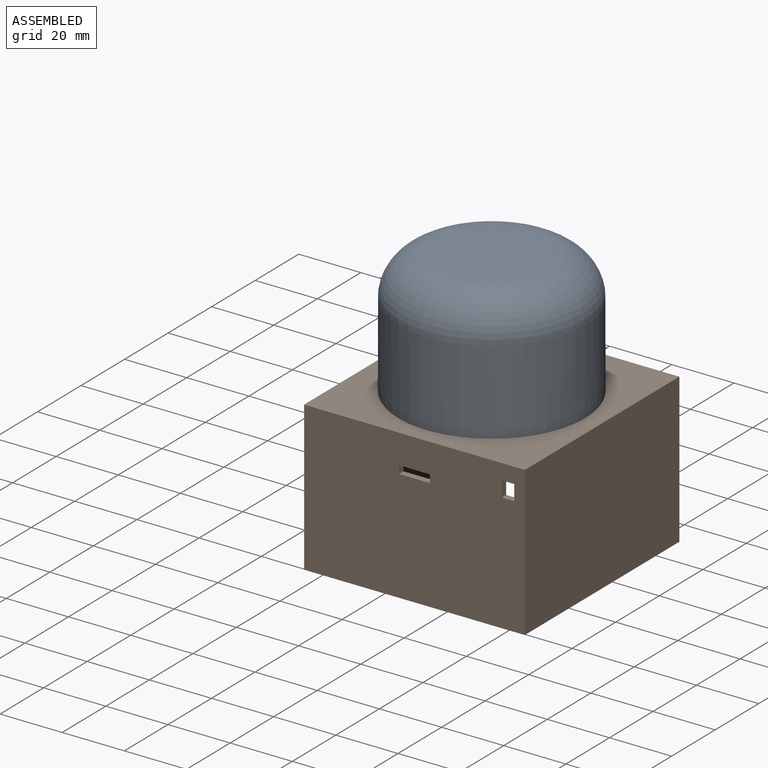
[diagram: assembled view]
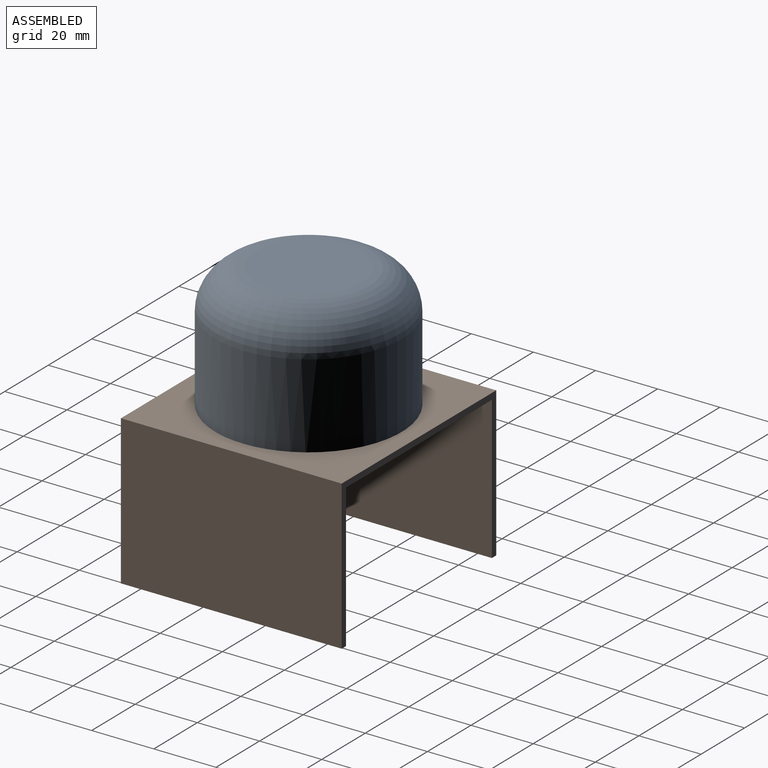
[diagram: assembled view, second angle]
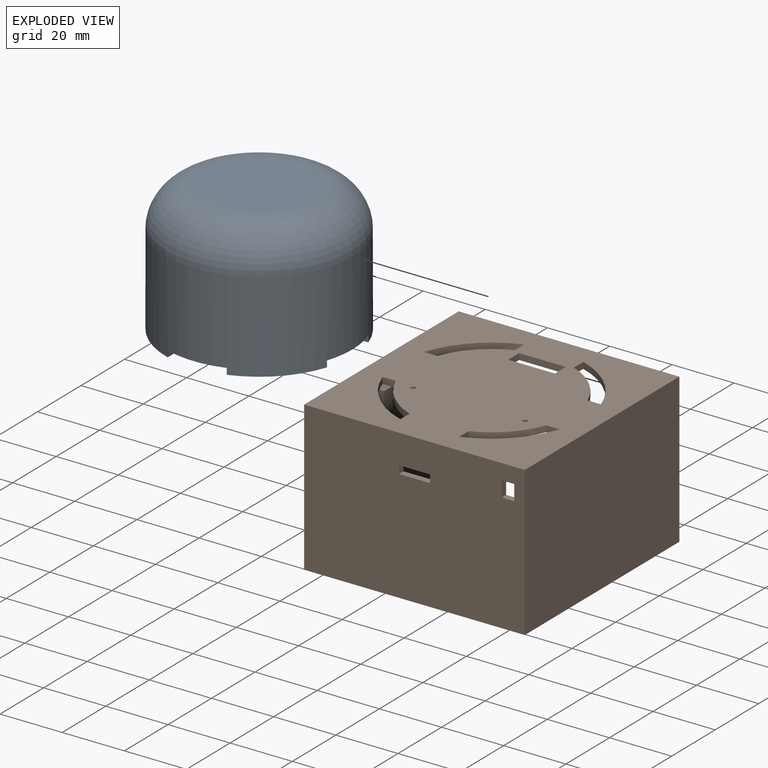
[diagram: exploded view]
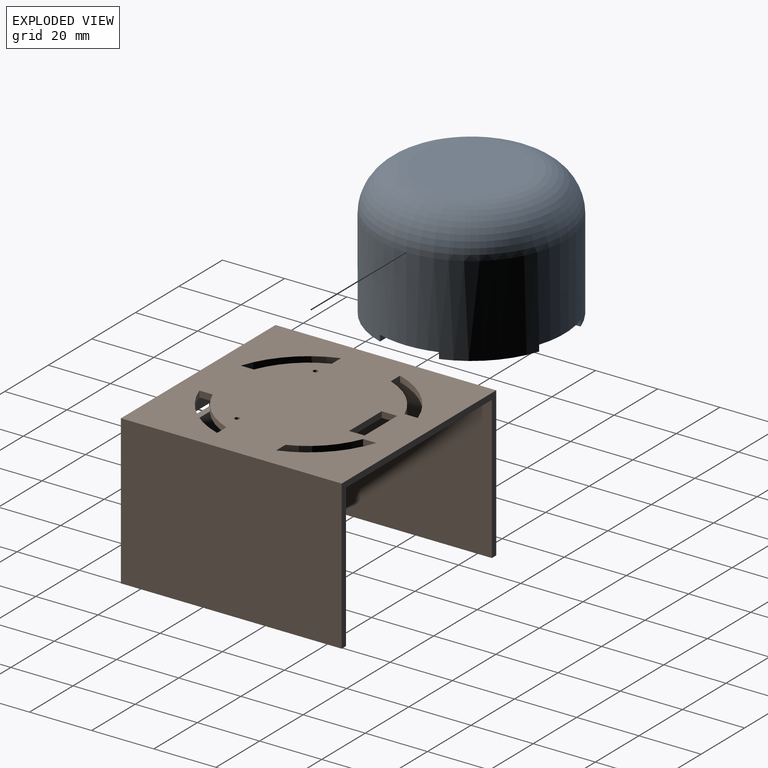
[diagram: exploded view, second angle]
ASSEMBLY  parts=2 mates=2
PART A: 24 faces, bbox 64.9x64.9x42 mm
  f0: plane 19x4.73mm, normal (0,0,-1), area 58.1mm2, adj f4,f11,f13,f21
  f1: plane 19x4.73mm, normal (0,0,-1), area 58.1mm2, adj f4,f11,f18,f22
  f2: plane 19x4.73mm, normal (0,0,-1), area 58.1mm2, adj f4,f11,f15,f19
  f3: plane 19x4.73mm, normal (0,0,-1), area 58.1mm2, adj f4,f11,f12,f16
  f4: cylinder r=30mm len=60mm, axis (0,0,1), area 5311.7mm2, adj f0,f1,f2,f3,f5,f12,f13,f14
  f5: torus R=17mm, axis (0,0,1), area 3243mm2, adj f4,f6
  f6: plane 34x34mm, normal (0,0,1), area 907.9mm2, adj f5
  f7: plane 34x34mm, normal (0,0,-1), area 907.9mm2, adj f8
  f8: torus R=17mm, axis (0,0,1), area 2019mm2, adj f7,f9
  f9: cylinder r=26mm len=52mm, axis (0,0,1), area 3920.7mm2, adj f8,f10
  f10: plane 54x54mm, normal (0,0,-1), area 166.5mm2, adj f9,f11
  f11: cylinder r=27mm len=54mm, axis (0,0,1), area 692.9mm2, adj f0,f1,f2,f3,f10,f12,f13,f14
  f12: plane 3.18x2mm, normal (1,0,0), area 6.4mm2, adj f3,f4,f11,f14
  f13: plane 3.18x2mm, normal (0,1,0), area 6.4mm2, adj f0,f4,f11,f14
  f14: plane 18.96x18.96mm, normal (0,0,-1), area 76.2mm2, adj f4,f11,f12,f13
  f15: plane 3.18x2mm, normal (0,1,0), area 6.4mm2, adj f2,f4,f11,f17
  f16: plane 3.18x2mm, normal (-1,0,0), area 6.4mm2, adj f3,f4,f11,f17
  f17: plane 18.96x18.96mm, normal (0,0,-1), area 76.2mm2, adj f4,f11,f15,f16
  f18: plane 3.18x2mm, normal (-1,0,0), area 6.4mm2, adj f1,f4,f11,f20
  f19: plane 3.18x2mm, normal (0,-1,0), area 6.4mm2, adj f2,f4,f11,f20
  f20: plane 18.96x18.96mm, normal (0,0,-1), area 76.2mm2, adj f4,f11,f18,f19
  f21: plane 3.18x2mm, normal (0,-1,0), area 6.4mm2, adj f0,f4,f11,f23
  f22: plane 3.18x2mm, normal (1,0,0), area 6.4mm2, adj f1,f4,f11,f23
  f23: plane 18.96x18.96mm, normal (0,0,-1), area 76.2mm2, adj f4,f11,f21,f22
PART B: 73 faces, bbox 71x71x48 mm
  f0: plane 71x71mm, normal (0,0,-1), area 446mm2, adj f1,f4,f10,f11,f15,f16,f17,f67
  f1: plane 69x46mm, normal (-1,0,0), area 3090.3mm2, adj f0,f3,f4,f10,f18,f19,f20,f21
  f2: plane 71x71mm, normal (0,0,1), area 4568.9mm2, adj f4,f5,f7,f8,f9,f11,f16,f17
  f3: plane 69x67mm, normal (0,0,-1), area 4111mm2, adj f1,f4,f5,f7,f8,f9,f10,f14
  f4: plane 71x48mm, normal (0,1,0), area 326mm2, adj f0,f1,f2,f3,f15,f16,f17
  f5: cylinder r=30mm len=18.96mm, axis (0,0,-1), area 55.6mm2, adj f2,f3,f48,f55
  f6: plane 3.5x2.96mm, normal (0,0,1), area 8mm2, adj f8,f14,f38,f52
  f7: cylinder r=30mm len=18.96mm, axis (0,0,-1), area 55.6mm2, adj f2,f3,f53,f54
  f8: cylinder r=30mm len=18.96mm, axis (0,0,-1), area 55.6mm2, adj f2,f3,f6,f51,f52
  f9: cylinder r=30mm len=18.96mm, axis (0,0,-1), area 55.6mm2, adj f2,f3,f30,f49,f50
  f10: plane 67x46mm, normal (0,1,0), area 3037mm2, adj f0,f1,f3,f15,f40,f41,f42,f43
  f11: plane 71x48mm, normal (0,-1,0), area 3363mm2, adj f0,f2,f16,f17,f40,f41,f42,f43
  f12: plane 7x4mm, normal (0,0,-1), area 28mm2, adj f14,f37,f38,f39
  f13: cylinder r=0.85mm len=4mm, axis (0,1,0), area 21.4mm2, adj f14,f39
  f14: plane 7x6.5mm, normal (0,-1,0), area 43.2mm2, adj f3,f6,f12,f13,f37,f38
  f15: plane 69x46mm, normal (1,0,0), area 3143.3mm2, adj f0,f3,f4,f10,f24,f26,f28,f29
  f16: plane 71x48mm, normal (1,0,0), area 3408mm2, adj f0,f2,f4,f11
  f17: plane 71x48mm, normal (-1,0,0), area 3408mm2, adj f0,f2,f4,f11
  f18: plane 8.34x7mm, normal (-0.77,0,0.64), area 21.8mm2, adj f1,f20,f21,f22
  f19: plane 7x2mm, normal (0,0,-1), area 14mm2, adj f1,f20,f21,f22
  f20: plane 15.34x7mm, normal (0,-1,0), area 75.9mm2, adj f1,f18,f19,f22,f23
  f21: plane 15.34x7mm, normal (0,1,0), area 75.9mm2, adj f1,f18,f19,f22,f23
  f22: plane 7x2mm, normal (-1,0,0), area 14mm2, adj f18,f19,f20,f21
  f23: cylinder r=0.85mm len=2mm, axis (0,1,0), area 10.7mm2, adj f20,f21
  f24: plane 8.34x7mm, normal (0.77,0,0.64), area 21.8mm2, adj f15,f25,f28,f29
  f25: plane 7x2mm, normal (1,0,0), area 14mm2, adj f24,f26,f28,f29
  f26: plane 7x2mm, normal (0,0,-1), area 14mm2, adj f15,f25,f28,f29
  f27: cylinder r=0.85mm len=2mm, axis (0,1,0), area 10.7mm2, adj f28,f29
  f28: plane 15.34x7mm, normal (0,-1,0), area 75.9mm2, adj f15,f24,f25,f26,f27
  f29: plane 15.34x7mm, normal (0,1,0), area 75.9mm2, adj f15,f24,f25,f26,f27
  f30: plane 3.5x2.96mm, normal (0,0,1), area 8mm2, adj f9,f31,f35,f49
  f31: plane 6.5x4mm, normal (1,0,0), area 26mm2, adj f3,f30,f32,f35,f36
  f32: plane 7x4mm, normal (0,0,-1), area 28mm2, adj f31,f34,f35,f36
  f33: cylinder r=0.85mm len=4mm, axis (0,1,0), area 21.4mm2, adj f35,f36
  f34: plane 6.5x4mm, normal (-1,0,0), area 26mm2, adj f3,f32,f35,f36
  f35: plane 7x6.5mm, normal (0,-1,0), area 43.2mm2, adj f3,f30,f31,f32,f33,f34
  f36: plane 7x6.5mm, normal (0,1,0), area 43.2mm2, adj f3,f31,f32,f33,f34
  f37: plane 6.5x4mm, normal (1,0,0), area 26mm2, adj f3,f12,f14,f39
  f38: plane 6.5x4mm, normal (-1,0,0), area 26mm2, adj f3,f6,f12,f14,f39
  f39: plane 7x6.5mm, normal (0,1,0), area 43.2mm2, adj f3,f12,f13,f37,f38
  f40: plane 4x2mm, normal (0,0,1), area 8mm2, adj f10,f11,f41,f42
  f41: plane 5x2mm, normal (1,0,0), area 10mm2, adj f10,f11,f40,f43
  f42: plane 5x2mm, normal (-1,0,0), area 10mm2, adj f10,f11,f40,f43
  f43: plane 4x2mm, normal (0,0,-1), area 8mm2, adj f10,f11,f41,f42
  f44: plane 10x2mm, normal (0,0,-1), area 20mm2, adj f10,f11,f45,f47
  f45: plane 2.5x2mm, normal (1,0,0), area 5mm2, adj f10,f11,f44,f46
  f46: plane 10x2mm, normal (0,0,1), area 20mm2, adj f10,f11,f45,f47
  f47: plane 2.5x2mm, normal (-1,0,0), area 5mm2, adj f10,f11,f44,f46
  f48: plane 4.25x2mm, normal (0,1,0), area 8.5mm2, adj f2,f3,f5,f59
  f49: plane 4.25x2mm, normal (0,-1,0), area 8.5mm2, adj f2,f3,f9,f30,f56
  f50: plane 4.25x2mm, normal (-1,0,0), area 8.5mm2, adj f2,f3,f9,f56
  f51: plane 4.25x2mm, normal (1,0,0), area 8.5mm2, adj f2,f3,f8,f57
  f52: plane 4.25x2mm, normal (0,-1,0), area 8.5mm2, adj f2,f3,f6,f8,f57
  f53: plane 4.25x2mm, normal (0,1,0), area 8.5mm2, adj f2,f3,f7,f58
  f54: plane 4.25x2mm, normal (1,0,0), area 8.5mm2, adj f2,f3,f7,f58
  f55: plane 4.25x2mm, normal (-1,0,0), area 8.5mm2, adj f2,f3,f5,f59
  f56: cylinder r=26mm len=14.7mm, axis (0,0,1), area 42.8mm2, adj f2,f3,f49,f50
  f57: cylinder r=26mm len=14.7mm, axis (0,0,1), area 42.8mm2, adj f2,f3,f51,f52
  f58: cylinder r=26mm len=14.7mm, axis (0,0,1), area 42.8mm2, adj f2,f3,f53,f54
  f59: cylinder r=26mm len=14.7mm, axis (0,0,1), area 42.8mm2, adj f2,f3,f48,f55
  f60: plane 5x2mm, normal (-1,0,0), area 10mm2, adj f2,f3,f61,f63
  f61: plane 15x2mm, normal (0,-1,0), area 30mm2, adj f2,f3,f60,f62
  f62: plane 5x2mm, normal (1,0,0), area 10mm2, adj f2,f3,f61,f63
  f63: plane 15x2mm, normal (0,1,0), area 30mm2, adj f2,f3,f60,f62
  f64: cylinder r=0.75mm len=2mm, axis (0,0,1), area 9.4mm2, adj f2,f3
  f65: cylinder r=0.75mm len=2mm, axis (0,0,1), area 9.4mm2, adj f2,f3
  f66: plane 8.34x7mm, normal (-0.77,0,0.64), area 32.7mm2, adj f1,f67,f69,f72
  f67: plane 15.34x7mm, normal (0,-1,0), area 75.9mm2, adj f0,f1,f66,f69,f70
  f68: plane 7x7mm, normal (0,1,0), area 46.7mm2, adj f0,f1,f69,f70,f71
  f69: plane 7x4mm, normal (-1,0,0), area 28mm2, adj f0,f66,f67,f68,f71
  f70: cylinder r=0.85mm len=4mm, axis (0,1,0), area 21.4mm2, adj f67,f68
  f71: plane 7x1mm, normal (0,0,1), area 7mm2, adj f1,f68,f69,f72
  f72: plane 8.34x7mm, normal (0,1,0), area 29.2mm2, adj f1,f66,f71
PLACE A t=(0.2,-0.1,22.75)mm
PLACE B t=(0.2,-0.1,-25.25)mm fixed
MATE planar A.f2 <-> B.f2  axis (0,0,-1) through (28.15,-0.1,22.75)mm
MATE cylindrical A.f4 <-> B.f5  axis (0,0,-1) through (0.2,-0.1,20.75)mm
